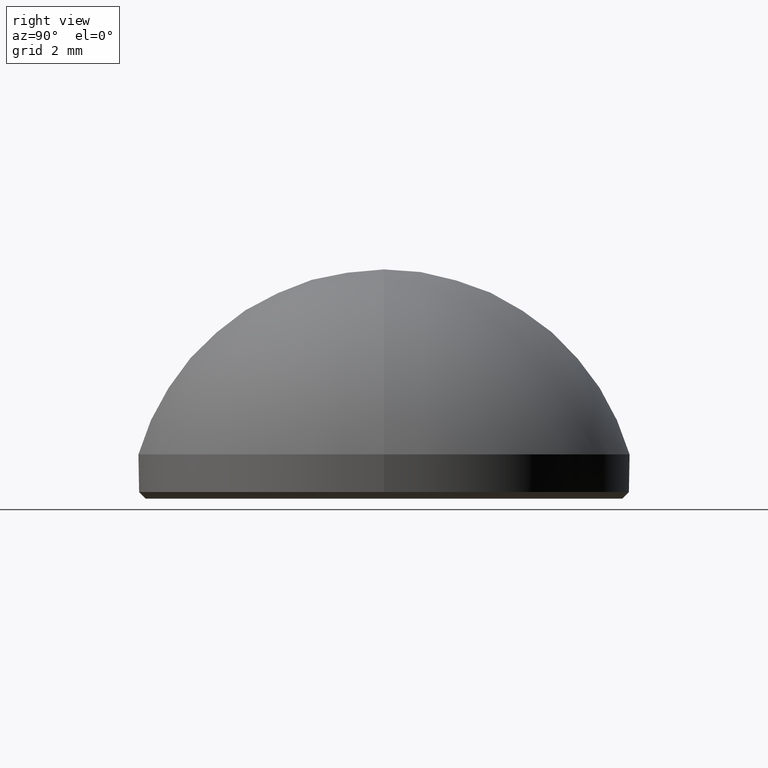
[diagram: clean part render]
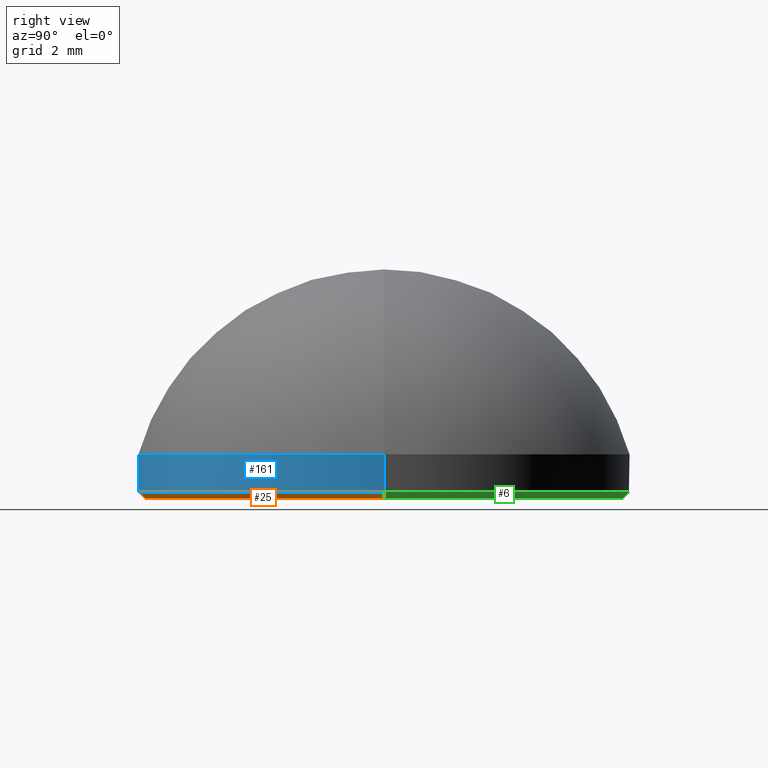
[diagram: same view with three faces highlighted in distinct colors, each labeled with its STEP entity id]
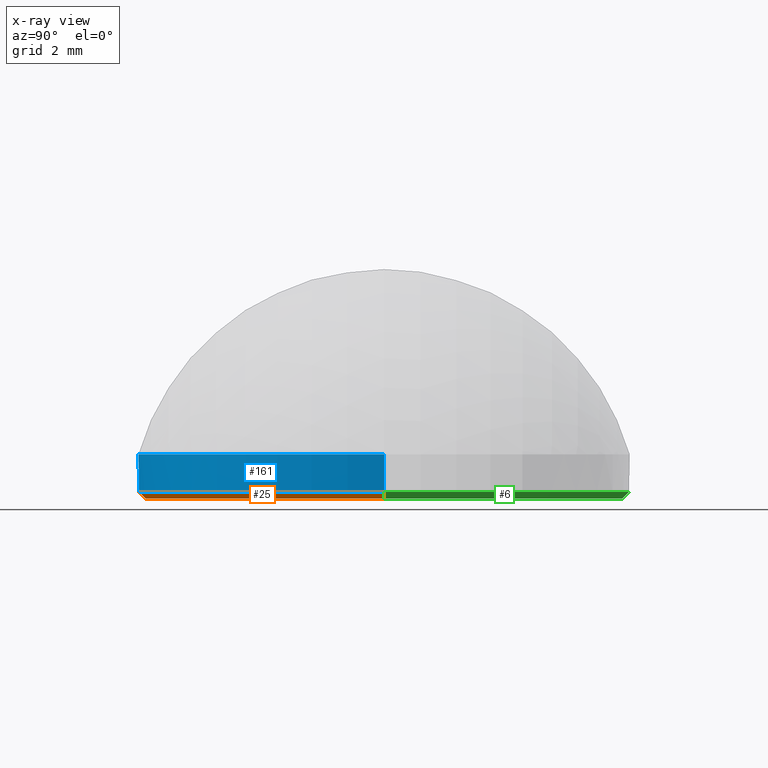
[diagram: x-ray of the same camera — body ghosted, the three highlighted faces saturated]
A machine part, right view with three faces highlighted in distinct colors.
The next image is the same camera in x-ray (body ghosted, the three faces saturated) — at least one of them is partly hidden behind the body in this view.
Their STEP definitions:

[orange] entity #25 — the highlighted conical surface has half-angle 45 deg.
#4 = VERTEX_POINT ( 'NONE', #59 ) ;
#9 = VECTOR ( 'NONE', #183, 1000.000000000000227 ) ;
#16 = CARTESIAN_POINT ( 'NONE',  ( 0.000000000000000000, 0.000000000000000000, 0.2000000000000065892 ) ) ;
#25 = ADVANCED_FACE ( 'NONE', ( #93 ), #206, .T. ) ;
#27 = VERTEX_POINT ( 'NONE', #155 ) ;
#29 = ORIENTED_EDGE ( 'NONE', *, *, #56, .F. ) ;
#33 = CIRCLE ( 'NONE', #168, 7.299999999999994493 ) ;
#45 = CARTESIAN_POINT ( 'NONE',  ( 0.000000000000000000, 0.000000000000000000, 0.2000000000000065892 ) ) ;
#48 = CARTESIAN_POINT ( 'NONE',  ( 7.500000000000000888, 0.000000000000000000, 0.2000000000000065892 ) ) ;
#56 = EDGE_CURVE ( 'NONE', #4, #149, #135, .T. ) ;
#59 = CARTESIAN_POINT ( 'NONE',  ( -7.299999999999994493, 9.062386313690410430E-16, 0.000000000000000000 ) ) ;
#87 = AXIS2_PLACEMENT_3D ( 'NONE', #16, #144, #209 ) ;
#93 = FACE_OUTER_BOUND ( 'NONE', #207, .T. ) ;
#95 = VERTEX_POINT ( 'NONE', #215 ) ;
#97 = CARTESIAN_POINT ( 'NONE',  ( -7.500000000000000888, 9.184850993605149917E-16, 0.2000000000000065892 ) ) ;
#98 = CARTESIAN_POINT ( 'NONE',  ( 0.000000000000000000, 0.000000000000000000, 0.000000000000000000 ) ) ;
#113 = DIRECTION ( 'NONE',  ( 1.000000000000000000, 0.000000000000000000, 0.000000000000000000 ) ) ;
#117 = DIRECTION ( 'NONE',  ( -0.000000000000000000, -0.000000000000000000, -1.000000000000000000 ) ) ;
#119 = CARTESIAN_POINT ( 'NONE',  ( -7.500000000000000888, 0.000000000000000000, 0.2000000000000065892 ) ) ;
#127 = ORIENTED_EDGE ( 'NONE', *, *, #181, .F. ) ;
#130 = VECTOR ( 'NONE', #159, 1000.000000000000227 ) ;
#133 = AXIS2_PLACEMENT_3D ( 'NONE', #45, #203, #113 ) ;
#135 = LINE ( 'NONE', #97, #130 ) ;
#144 = DIRECTION ( 'NONE',  ( -0.000000000000000000, -0.000000000000000000, 1.000000000000000000 ) ) ;
#149 = VERTEX_POINT ( 'NONE', #119 ) ;
#154 = CIRCLE ( 'NONE', #87, 7.500000000000000888 ) ;
#155 = CARTESIAN_POINT ( 'NONE',  ( 7.500000000000000888, 9.184850993605147944E-16, 0.2000000000000065892 ) ) ;
#159 = DIRECTION ( 'NONE',  ( -0.7071067811865460184, 8.659560562354913137E-17, 0.7071067811865490160 ) ) ;
#160 = DIRECTION ( 'NONE',  ( 1.000000000000000000, 0.000000000000000000, 0.000000000000000000 ) ) ;
#168 = AXIS2_PLACEMENT_3D ( 'NONE', #98, #117, #160 ) ;
#175 = EDGE_CURVE ( 'NONE', #95, #4, #33, .T. ) ;
#181 = EDGE_CURVE ( 'NONE', #149, #27, #154, .T. ) ;
#183 = DIRECTION ( 'NONE',  ( 0.7071067811865460184, 0.000000000000000000, 0.7071067811865490160 ) ) ;
#196 = EDGE_CURVE ( 'NONE', #95, #27, #199, .T. ) ;
#199 = LINE ( 'NONE', #48, #9 ) ;
#203 = DIRECTION ( 'NONE',  ( -0.000000000000000000, -0.000000000000000000, 1.000000000000000000 ) ) ;
#205 = ORIENTED_EDGE ( 'NONE', *, *, #196, .T. ) ;
#206 = CONICAL_SURFACE ( 'NONE', #133, 7.500000000000000888, 0.7853981633974461696 ) ;
#207 = EDGE_LOOP ( 'NONE', ( #29, #216, #205, #127 ) ) ;
#209 = DIRECTION ( 'NONE',  ( 1.000000000000000000, 0.000000000000000000, 0.000000000000000000 ) ) ;
#215 = CARTESIAN_POINT ( 'NONE',  ( 7.299999999999994493, 0.000000000000000000, 0.000000000000000000 ) ) ;
#216 = ORIENTED_EDGE ( 'NONE', *, *, #175, .F. ) ;

[blue] entity #161 — the highlighted cylindrical surface (partial cylindrical patch) has radius 7.5 mm, axis along (-0, -0, -1).
#5 = VERTEX_POINT ( 'NONE', #76 ) ;
#16 = CARTESIAN_POINT ( 'NONE',  ( 0.000000000000000000, 0.000000000000000000, 0.2000000000000065892 ) ) ;
#27 = VERTEX_POINT ( 'NONE', #155 ) ;
#30 = DIRECTION ( 'NONE',  ( -0.000000000000000000, -0.000000000000000000, -1.000000000000000000 ) ) ;
#31 = LINE ( 'NONE', #99, #46 ) ;
#34 = DIRECTION ( 'NONE',  ( -0.000000000000000000, -0.000000000000000000, -1.000000000000000000 ) ) ;
#41 = CIRCLE ( 'NONE', #136, 7.500000000000000888 ) ;
#43 = CARTESIAN_POINT ( 'NONE',  ( 7.500000000000000888, 9.184850993605147944E-16, 1.350000000000000089 ) ) ;
#46 = VECTOR ( 'NONE', #34, 1000.000000000000000 ) ;
#55 = VECTOR ( 'NONE', #194, 1000.000000000000000 ) ;
#58 = ORIENTED_EDGE ( 'NONE', *, *, #202, .T. ) ;
#64 = CARTESIAN_POINT ( 'NONE',  ( 0.000000000000000000, 0.000000000000000000, 1.350000000000000089 ) ) ;
#65 = EDGE_CURVE ( 'NONE', #188, #27, #121, .T. ) ;
#76 = CARTESIAN_POINT ( 'NONE',  ( -7.500000000000000888, 0.000000000000000000, 1.350000000000000089 ) ) ;
#78 = FACE_OUTER_BOUND ( 'NONE', #86, .T. ) ;
#83 = DIRECTION ( 'NONE',  ( 1.000000000000000000, 0.000000000000000000, 0.000000000000000000 ) ) ;
#86 = EDGE_LOOP ( 'NONE', ( #172, #143, #58, #190 ) ) ;
#87 = AXIS2_PLACEMENT_3D ( 'NONE', #16, #144, #209 ) ;
#99 = CARTESIAN_POINT ( 'NONE',  ( -7.500000000000000888, 0.000000000000000000, 1.350000000000000089 ) ) ;
#103 = DIRECTION ( 'NONE',  ( -1.000000000000000000, 0.000000000000000000, 0.000000000000000000 ) ) ;
#119 = CARTESIAN_POINT ( 'NONE',  ( -7.500000000000000888, 0.000000000000000000, 0.2000000000000065892 ) ) ;
#121 = LINE ( 'NONE', #43, #55 ) ;
#125 = EDGE_CURVE ( 'NONE', #5, #188, #41, .T. ) ;
#131 = DIRECTION ( 'NONE',  ( 0.000000000000000000, 0.000000000000000000, 1.000000000000000000 ) ) ;
#136 = AXIS2_PLACEMENT_3D ( 'NONE', #64, #131, #83 ) ;
#143 = ORIENTED_EDGE ( 'NONE', *, *, #125, .F. ) ;
#144 = DIRECTION ( 'NONE',  ( -0.000000000000000000, -0.000000000000000000, 1.000000000000000000 ) ) ;
#149 = VERTEX_POINT ( 'NONE', #119 ) ;
#154 = CIRCLE ( 'NONE', #87, 7.500000000000000888 ) ;
#155 = CARTESIAN_POINT ( 'NONE',  ( 7.500000000000000888, 9.184850993605147944E-16, 0.2000000000000065892 ) ) ;
#161 = ADVANCED_FACE ( 'NONE', ( #78 ), #166, .T. ) ;
#166 = CYLINDRICAL_SURFACE ( 'NONE', #204, 7.500000000000000888 ) ;
#172 = ORIENTED_EDGE ( 'NONE', *, *, #65, .F. ) ;
#181 = EDGE_CURVE ( 'NONE', #149, #27, #154, .T. ) ;
#182 = CARTESIAN_POINT ( 'NONE',  ( 0.000000000000000000, 0.000000000000000000, 1.350000000000000089 ) ) ;
#188 = VERTEX_POINT ( 'NONE', #198 ) ;
#190 = ORIENTED_EDGE ( 'NONE', *, *, #181, .T. ) ;
#194 = DIRECTION ( 'NONE',  ( -0.000000000000000000, -0.000000000000000000, -1.000000000000000000 ) ) ;
#198 = CARTESIAN_POINT ( 'NONE',  ( 7.500000000000000888, 9.184850993605147944E-16, 1.350000000000000089 ) ) ;
#202 = EDGE_CURVE ( 'NONE', #5, #149, #31, .T. ) ;
#204 = AXIS2_PLACEMENT_3D ( 'NONE', #182, #30, #103 ) ;
#209 = DIRECTION ( 'NONE',  ( 1.000000000000000000, 0.000000000000000000, 0.000000000000000000 ) ) ;

[green] entity #6 — the highlighted conical surface has half-angle 45 deg.
#3 = EDGE_CURVE ( 'NONE', #27, #149, #214, .T. ) ;
#4 = VERTEX_POINT ( 'NONE', #59 ) ;
#6 = ADVANCED_FACE ( 'NONE', ( #94 ), #14, .T. ) ;
#7 = DIRECTION ( 'NONE',  ( 1.000000000000000000, 0.000000000000000000, 0.000000000000000000 ) ) ;
#8 = DIRECTION ( 'NONE',  ( -0.000000000000000000, -0.000000000000000000, 1.000000000000000000 ) ) ;
#9 = VECTOR ( 'NONE', #183, 1000.000000000000227 ) ;
#10 = CARTESIAN_POINT ( 'NONE',  ( 0.000000000000000000, 0.000000000000000000, 0.2000000000000065892 ) ) ;
#14 = CONICAL_SURFACE ( 'NONE', #42, 7.500000000000000888, 0.7853981633974461696 ) ;
#26 = CARTESIAN_POINT ( 'NONE',  ( 0.000000000000000000, 0.000000000000000000, 0.2000000000000065892 ) ) ;
#27 = VERTEX_POINT ( 'NONE', #155 ) ;
#28 = EDGE_CURVE ( 'NONE', #4, #95, #191, .T. ) ;
#42 = AXIS2_PLACEMENT_3D ( 'NONE', #10, #197, #44 ) ;
#44 = DIRECTION ( 'NONE',  ( 1.000000000000000000, 0.000000000000000000, 0.000000000000000000 ) ) ;
#48 = CARTESIAN_POINT ( 'NONE',  ( 7.500000000000000888, 0.000000000000000000, 0.2000000000000065892 ) ) ;
#56 = EDGE_CURVE ( 'NONE', #4, #149, #135, .T. ) ;
#59 = CARTESIAN_POINT ( 'NONE',  ( -7.299999999999994493, 9.062386313690410430E-16, 0.000000000000000000 ) ) ;
#66 = EDGE_LOOP ( 'NONE', ( #89, #77, #70, #152 ) ) ;
#70 = ORIENTED_EDGE ( 'NONE', *, *, #3, .F. ) ;
#77 = ORIENTED_EDGE ( 'NONE', *, *, #56, .T. ) ;
#89 = ORIENTED_EDGE ( 'NONE', *, *, #28, .F. ) ;
#94 = FACE_OUTER_BOUND ( 'NONE', #66, .T. ) ;
#95 = VERTEX_POINT ( 'NONE', #215 ) ;
#97 = CARTESIAN_POINT ( 'NONE',  ( -7.500000000000000888, 9.184850993605149917E-16, 0.2000000000000065892 ) ) ;
#119 = CARTESIAN_POINT ( 'NONE',  ( -7.500000000000000888, 0.000000000000000000, 0.2000000000000065892 ) ) ;
#122 = AXIS2_PLACEMENT_3D ( 'NONE', #26, #8, #192 ) ;
#123 = AXIS2_PLACEMENT_3D ( 'NONE', #126, #195, #7 ) ;
#126 = CARTESIAN_POINT ( 'NONE',  ( 0.000000000000000000, 0.000000000000000000, 0.000000000000000000 ) ) ;
#130 = VECTOR ( 'NONE', #159, 1000.000000000000227 ) ;
#135 = LINE ( 'NONE', #97, #130 ) ;
#149 = VERTEX_POINT ( 'NONE', #119 ) ;
#152 = ORIENTED_EDGE ( 'NONE', *, *, #196, .F. ) ;
#155 = CARTESIAN_POINT ( 'NONE',  ( 7.500000000000000888, 9.184850993605147944E-16, 0.2000000000000065892 ) ) ;
#159 = DIRECTION ( 'NONE',  ( -0.7071067811865460184, 8.659560562354913137E-17, 0.7071067811865490160 ) ) ;
#183 = DIRECTION ( 'NONE',  ( 0.7071067811865460184, 0.000000000000000000, 0.7071067811865490160 ) ) ;
#191 = CIRCLE ( 'NONE', #123, 7.299999999999994493 ) ;
#192 = DIRECTION ( 'NONE',  ( 1.000000000000000000, 0.000000000000000000, 0.000000000000000000 ) ) ;
#195 = DIRECTION ( 'NONE',  ( -0.000000000000000000, -0.000000000000000000, -1.000000000000000000 ) ) ;
#196 = EDGE_CURVE ( 'NONE', #95, #27, #199, .T. ) ;
#197 = DIRECTION ( 'NONE',  ( -0.000000000000000000, -0.000000000000000000, 1.000000000000000000 ) ) ;
#199 = LINE ( 'NONE', #48, #9 ) ;
#214 = CIRCLE ( 'NONE', #122, 7.500000000000000888 ) ;
#215 = CARTESIAN_POINT ( 'NONE',  ( 7.299999999999994493, 0.000000000000000000, 0.000000000000000000 ) ) ;